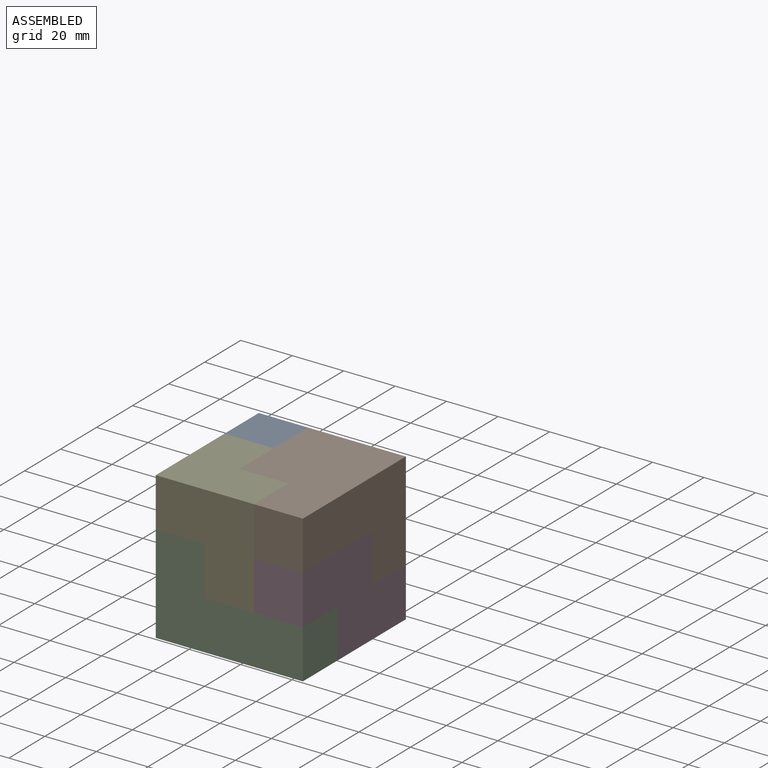
[diagram: assembled view]
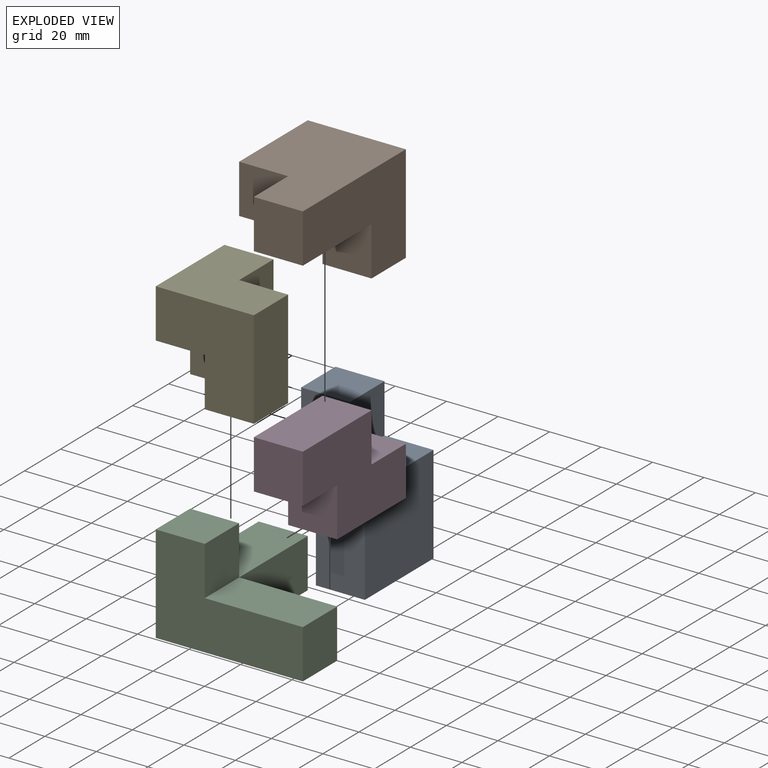
[diagram: exploded view]
GUIDED TOUR — MATED ASSEMBLY WITH SUBASSEMBLIES (Onshape document 07136e114ef27b51c66d2fa9, AutoMate assembly 07136e114ef27b51c66d2fa9_a3bc59fbf322028cf339dc3c_d794ad5f0589c1468adc88d8_default)

This assembly has 27 component occurrences arranged in 5 top-level units: 0 individual components plus 5 subassemblies (S0, S1, S2, S3, S4). The tour has two levels: first the top level, where each subassembly is treated as one rigid unit; then each subassembly is toured internally in its own section (nesting deeper than one subassembly level is flattened into its subassembly's section).

Components are labeled P0..P26 across the whole record; subassembly units are labeled S0..S4. A mate is a constraint between two units; its type names the relative motion it leaves free:
  FASTENED — locks the two components together rigidly (no relative motion).
Axis/direction vectors are unit vectors and 'through' points are millimeter coordinates, both in the assembly's world frame.

TOP-LEVEL MATES (between units; each subassembly's internal mates are listed in its own section)
  1. FASTENED "Fastened 1": S4 <-> S2, direction (0.000, 0.000, -1.000) through (-42.25, -92.13, -70.48) mm
  2. FASTENED "Fastened 3": S0 <-> S4, direction (0.000, -1.000, 0.000) through (-42.25, -63.56, -60.95) mm
  3. FASTENED "Fastened 2": S3 <-> S2, direction (0.000, 0.000, -1.000) through (-4.15, -92.13, -89.53) mm
  4. FASTENED "Fastened 4": S1 <-> S3, direction (0.000, 0.000, -1.000) through (-4.15, -54.03, -89.53) mm

TOP-LEVEL ASSEMBLY ORDER
  1. S2 — the base component [order verified]
  2. S4 [order verified]
  3. S1 [order verified]
  4. S0 [order verified]
  5. S3 [order verified]
Order-tag legend:
  [order verified] — this step's position reverses a verified removal order: the component was checked to insert without passing through the ones already placed.

Of the 27 component occurrences, 0 carry the full construction recipe — the FeatureScript program that regenerates the part's solid from scratch; the rest are supplied as boundary geometry only. Each toured unit is shown spotlighted twice — assembled, then exploded with a leader line back to its socket (green = recipe-attached component, orange = geometry-only, blue = subassembly unit; the rest desaturated gray).
NOTE — document 3 of 3 of this assembly tour. The two overview renders and the header above are repeated from document 1; the component sections below continue where the previous document stopped.
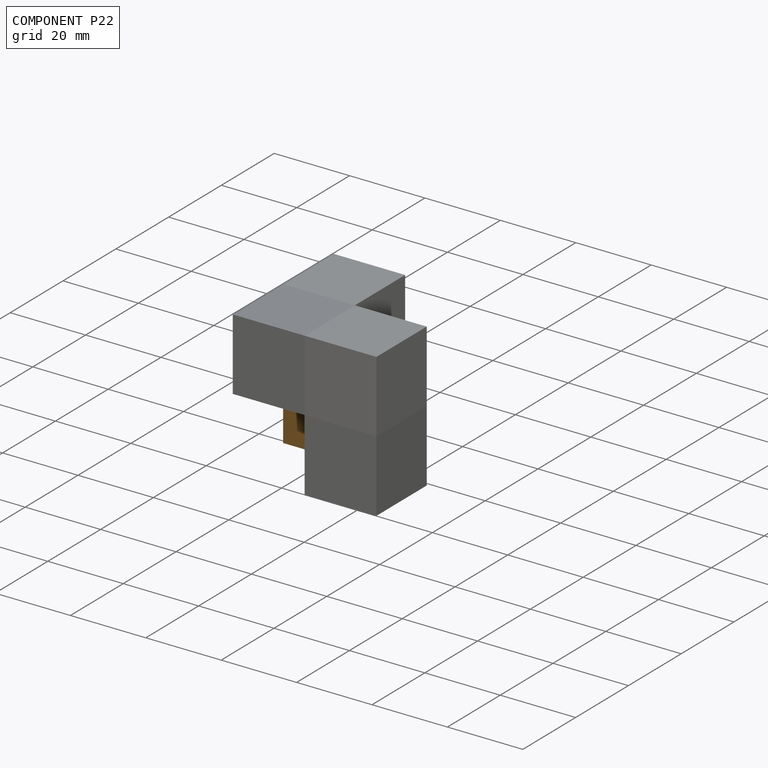
[diagram: component P22 — assembled]
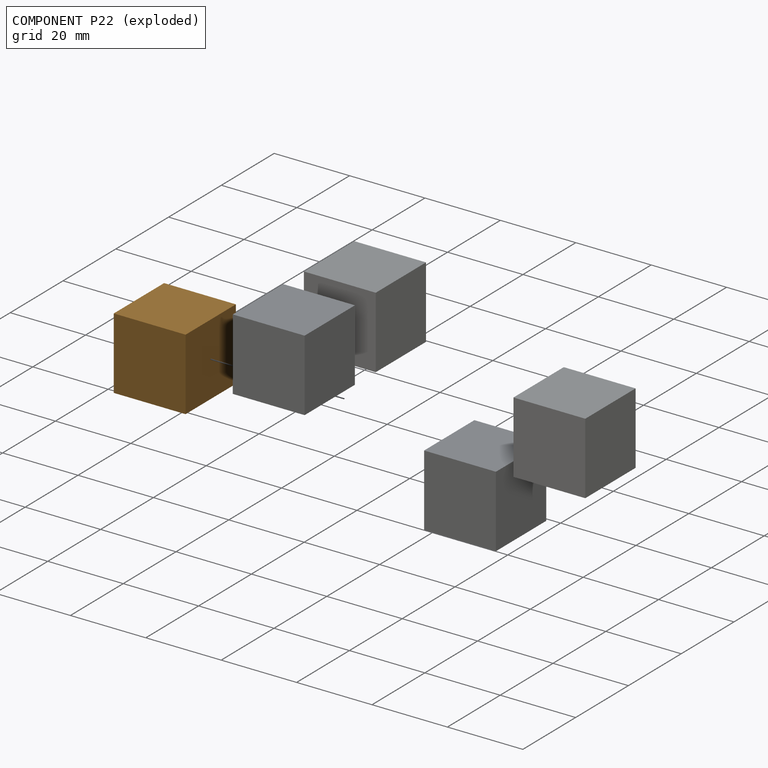
[diagram: component P22 — exploded]
COMPONENT P22 — geometry summary (no construction recipe available for this part):
  bounding box: 19.1 x 19.1 x 19.0 mm
  B-rep topology: 1 solid, 6 faces, 24 edges
  volume: 6913 mm^3 (100% of its bounding box)
  symmetry: 4-fold rotationally symmetric about the x axis; 4-fold rotationally symmetric about the y axis; 4-fold rotationally symmetric about the z axis; mirror-symmetric across its x mid-plane, y mid-plane, z mid-plane
Held by: no mates (free).
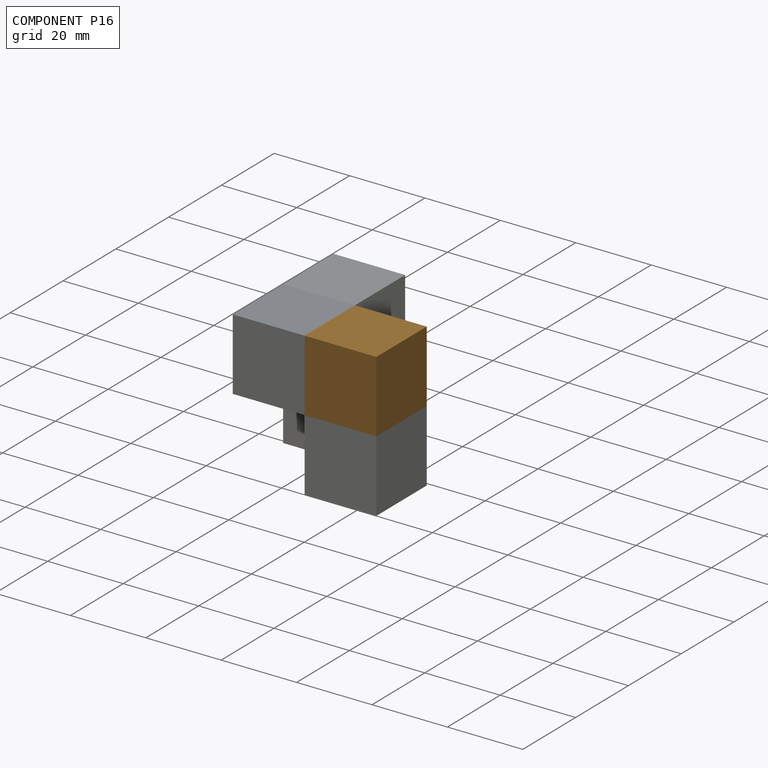
[diagram: component P16 — assembled]
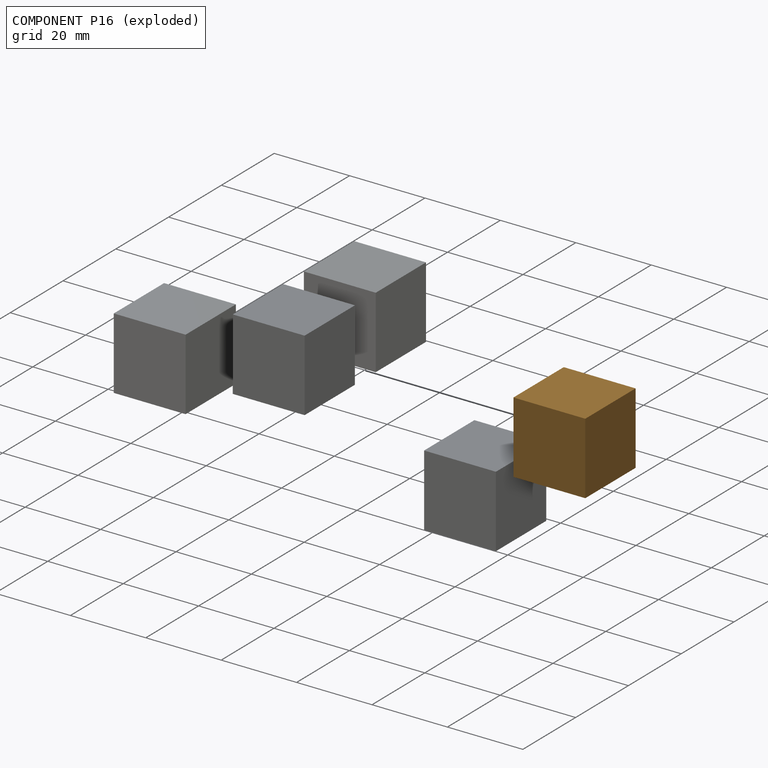
[diagram: component P16 — exploded]
COMPONENT P16 — geometry summary (no construction recipe available for this part):
  bounding box: 19.1 x 19.1 x 19.0 mm
  B-rep topology: 1 solid, 6 faces, 24 edges
  volume: 6913 mm^3 (100% of its bounding box)
  symmetry: 4-fold rotationally symmetric about the x axis; 4-fold rotationally symmetric about the y axis; 4-fold rotationally symmetric about the z axis; mirror-symmetric across its x mid-plane, y mid-plane, z mid-plane
Held by: no mates (free).
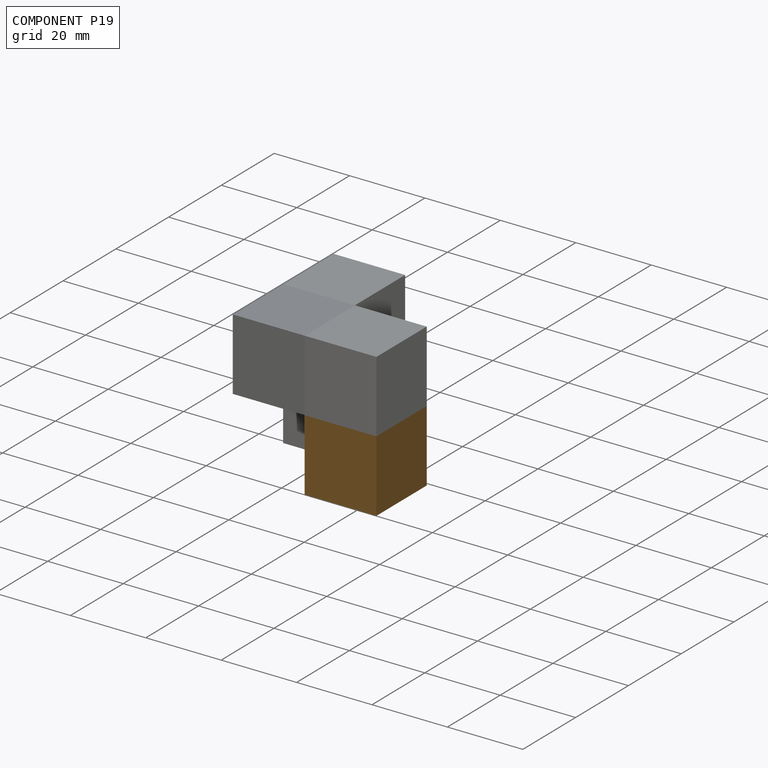
[diagram: component P19 — assembled]
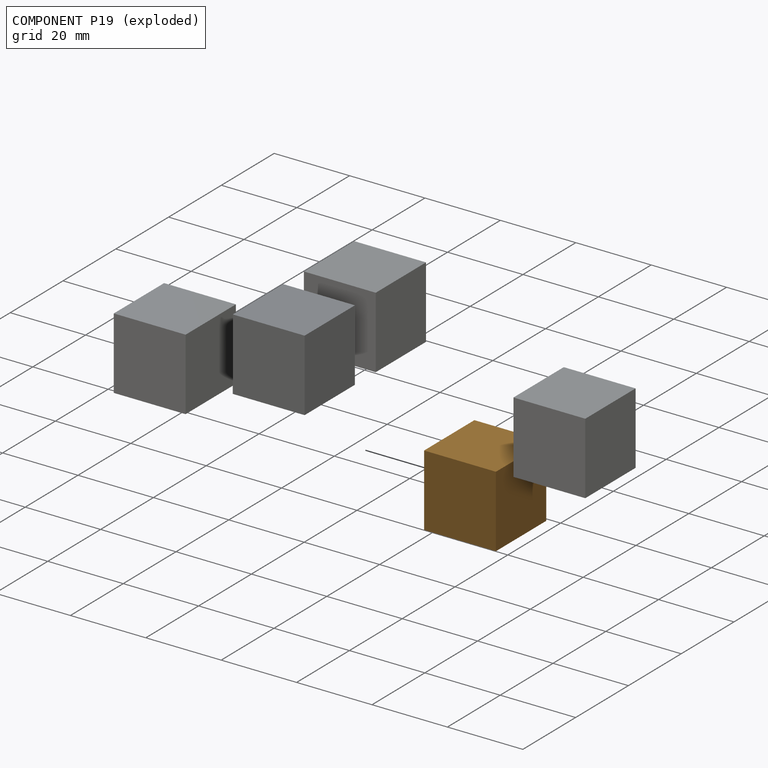
[diagram: component P19 — exploded]
COMPONENT P19 — geometry summary (no construction recipe available for this part):
  bounding box: 19.1 x 19.1 x 19.0 mm
  B-rep topology: 1 solid, 6 faces, 24 edges
  volume: 6913 mm^3 (100% of its bounding box)
  symmetry: 4-fold rotationally symmetric about the x axis; 4-fold rotationally symmetric about the y axis; 4-fold rotationally symmetric about the z axis; mirror-symmetric across its x mid-plane, y mid-plane, z mid-plane
Held by: no mates (free).
PROVENANCE & LICENSES
Assembly (occurrences, transforms, mates, per-part STEP geometry): AutoMate dataset, Zenodo record 7776208, CC0.
Construction recipes: CADFS (HuggingFace VladPyatov/CADFS, CC-BY-4.0, layered over the ABC dataset), FeatureScript reconstruction programs keyed by ABC model id.
Join: ABC meta listings map ABC model id -> Onshape documentId; within a shared document, parts are matched by geometric signature (bounding-box dims + volume at 0.1% relative tolerance, exact B-rep face/solid counts).
Verification: no recipe attachments in this assembly (27 components, all geometry-only).
Renders: orthographic iso camera (az 35 / el 25); the floor grid conveys scale (grid pitch printed in each image; no ruler). In the exploded view each component is displaced by its stored offset vector: the offsets alone carry the explosion direction (mate normal/axis signs are not orientation cues and do not encode it), and separation distances are assigned per mate-chain, not proportionally to assembly-order depth.
